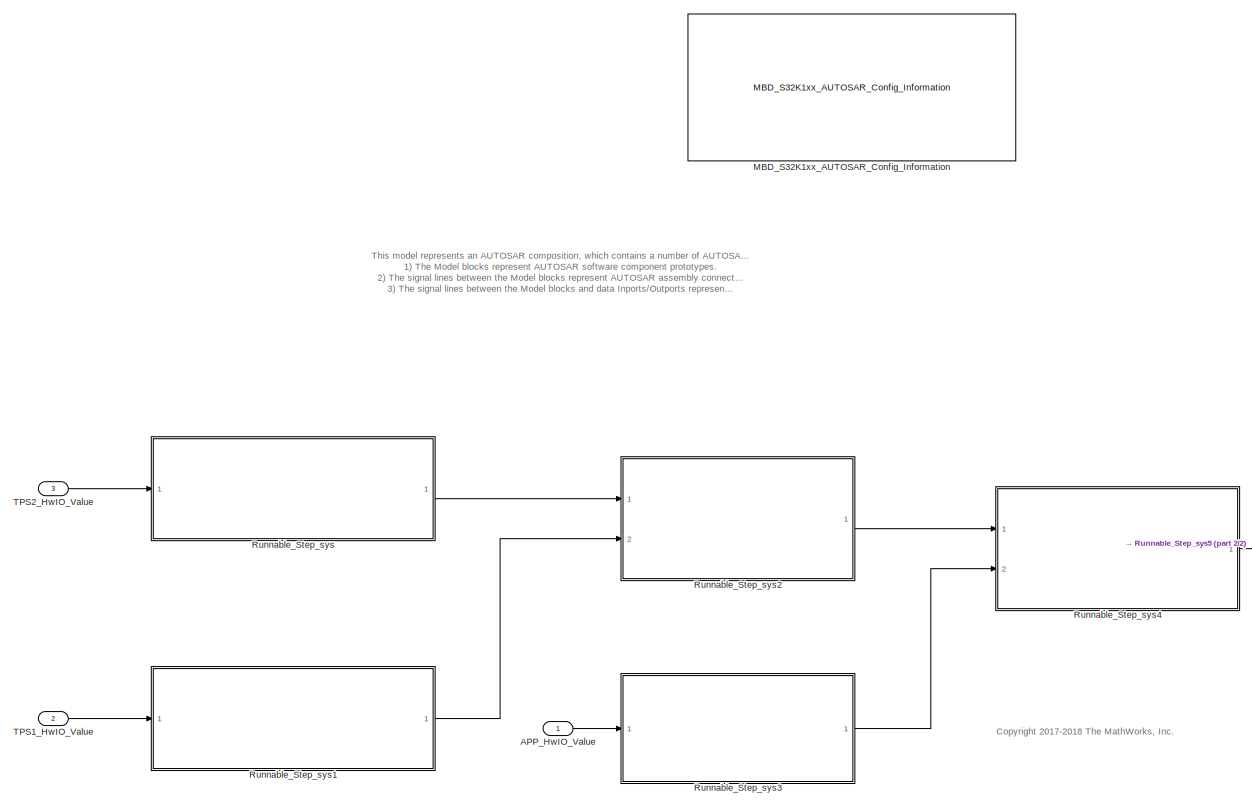
[diagram: root canvas - part 1/2, most of the canvas]
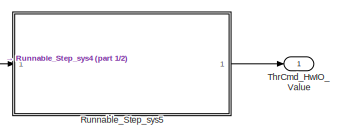
[diagram: root canvas - part 2/2, bottom right region]
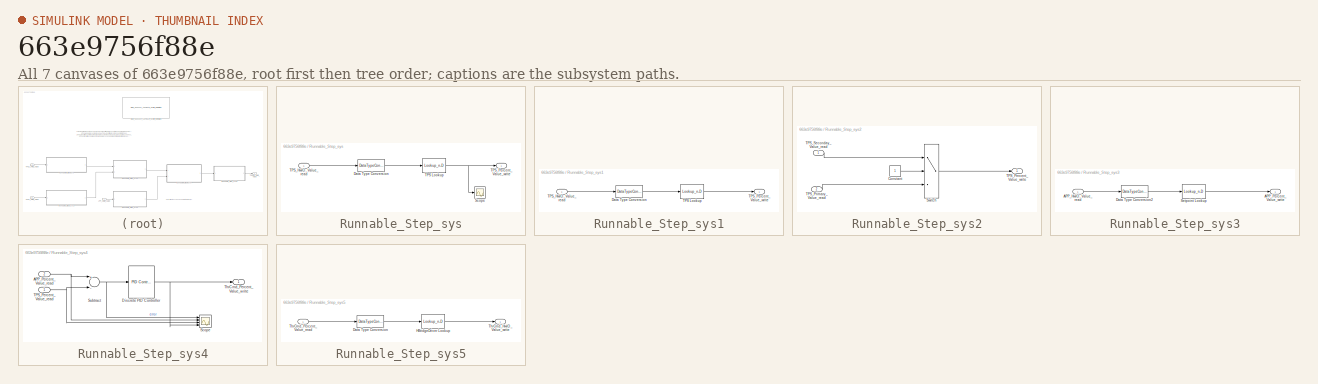
[diagram: thumbnail index - all 7 canvases of the model, root first then tree order]
MODEL slx_663e9756f88e
KIND model
CONFIG AbsTol = auto
CONFIG EnableMultiTasking = on
CONFIG FixedStep = 0.005
CONFIG InitFcn = mbd_s32k_as_consistency_checks(bdroot(gcs));
CONFIG MaxStep = auto
CONFIG MinStep = auto
CONFIG RelTol = 1e-3
CONFIG SampleTimeConstraint = Unconstrained
CONFIG Solver = FixedStepDiscrete
CONFIG SolverName = FixedStepDiscrete
CONFIG StartTime = 0.0
CONFIG StopTime = 1.5
WORKSPACE source: MAT-file member
WORKSPACE MCOS: class17 (value not decoded)
BLOCK [Inport] APP_HwIO_Value
  IconDisplay = Port number
  OutDataTypeStr = uint16
  PortDimensions = 1
  SamplingMode = Sample based
  SignalType = real
BLOCK [Reference] MBD_S32K1xx_AUTOSAR_Config_Information  REF=mbd_s32k_as_ec_toolbox/MBD_S32K1xx_AUTOSAR_Config_Information
  Ports = []
  SourceBlock = mbd_s32k_as_ec_toolbox/MBD_S32K1xx_AUTOSAR_Config_Information
  SourceType = MBDTBX_EC_S32K_AS
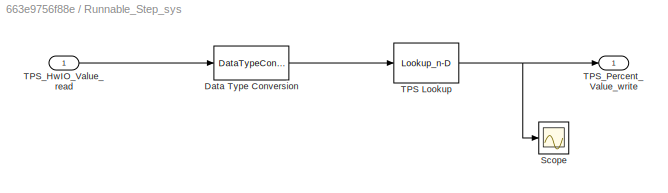
BLOCK [SubSystem] Runnable_Step_sys
  Ports = [1, 1]
  Priority = 3
  RequestExecContextInheritance = off
  SystemSampleTime = 0.005
  TreatAsAtomicUnit = on
BLOCK [DataTypeConversion] Runnable_Step_sys/Data Type Conversion
  OutDataTypeStr = single
  RndMeth = Floor
  SaturateOnIntegerOverflow = off
BLOCK [Scope] Runnable_Step_sys/Scope
  Floating = off
  NumInputPorts = 1
  Ports = [1]
  ScopeSpecificationString = Simulink.scopes.TimeScopeBlockCfg('CurrentConfiguration', extmgr.ConfigurationSet(extmgr.Configuration('Core','General UI',true),extmgr.Configuration('Core','Source UI',true),extmgr.Configuration('Sources','WiredSimulink',true,'DataLoggingVariableName','ScopeData1'),extmgr.Configuration('Visuals','Time Domain',true,'SerializedDisplays',{struct('MinYLimReal','-8.21294','MaxYLimReal','73.91645','YLa...<+1402ch>
BLOCK [Lookup_n-D] Runnable_Step_sys/TPS Lookup
  BreakpointsForDimension1 = TPSPercentBkpt
  BreakpointsForDimension1DataTypeStr = single
  DataSpecification = Lookup table object
  ExtrapMethod = Clip
  IndexSearchMethod = Linear search
  InternalRulePriority = Speed
  LookupTableObject = TPSSecondaryPercent_LkupTbl
  NumberOfTableDimensions = 1
  OutDataTypeStr = single
  Ports = [1, 1]
  RndMeth = Simplest
  Table = TPSPercentTbl
  TableDataTypeStr = single
BLOCK [Inport] Runnable_Step_sys/TPS_HwIO_Value_read
  IconDisplay = Port number
BLOCK [Outport] Runnable_Step_sys/TPS_Percent_Value_write
  IconDisplay = Port number
BLOCK [SubSystem] Runnable_Step_sys1
  Ports = [1, 1]
  Priority = 2
  RequestExecContextInheritance = off
  SystemSampleTime = 0.005
  TreatAsAtomicUnit = on
BLOCK [DataTypeConversion] Runnable_Step_sys1/Data Type Conversion
  OutDataTypeStr = single
  RndMeth = Floor
  SaturateOnIntegerOverflow = off
BLOCK [Lookup_n-D] Runnable_Step_sys1/TPS Lookup
  BreakpointsForDimension1 = TPSPercentBkpt
  BreakpointsForDimension1DataTypeStr = single
  DataSpecification = Lookup table object
  ExtrapMethod = Clip
  IndexSearchMethod = Linear search
  InternalRulePriority = Speed
  LookupTableObject = TPSPrimaryPercent_LkupTbl
  NumberOfTableDimensions = 1
  OutDataTypeStr = single
  Ports = [1, 1]
  RndMeth = Simplest
  Table = TPSPercentTbl
  TableDataTypeStr = single
BLOCK [Inport] Runnable_Step_sys1/TPS_HwIO_Value_read
  IconDisplay = Port number
BLOCK [Outport] Runnable_Step_sys1/TPS_Percent_Value_write
  IconDisplay = Port number
BLOCK [SubSystem] Runnable_Step_sys2
  Ports = [2, 1]
  Priority = 4
  RequestExecContextInheritance = off
  SystemSampleTime = 0.005
  TreatAsAtomicUnit = on
BLOCK [Constant] Runnable_Step_sys2/Constant
  OutDataTypeStr = boolean
BLOCK [Switch] Runnable_Step_sys2/Switch
  Criteria = u2 ~= 0
  InputSameDT = off
  SaturateOnIntegerOverflow = off
BLOCK [Outport] Runnable_Step_sys2/TPS_Percent_Value_write
  IconDisplay = Port number
  PortDimensions = 1
  SignalType = real
BLOCK [Inport] Runnable_Step_sys2/TPS_Primary_Value_read
  IconDisplay = Port number
  Port = 2
BLOCK [Inport] Runnable_Step_sys2/TPS_Seconday_Value_read
  IconDisplay = Port number
BLOCK [SubSystem] Runnable_Step_sys3
  Ports = [1, 1]
  Priority = 5
  RequestExecContextInheritance = off
  SystemSampleTime = 0.005
  TreatAsAtomicUnit = on
BLOCK [Inport] Runnable_Step_sys3/APP_HwIO_Value_read
  IconDisplay = Port number
BLOCK [Outport] Runnable_Step_sys3/APP_Percent_Value_write
  IconDisplay = Port number
BLOCK [DataTypeConversion] Runnable_Step_sys3/Data Type Conversion2
  OutDataTypeStr = single
  RndMeth = Floor
  SaturateOnIntegerOverflow = off
BLOCK [Lookup_n-D] Runnable_Step_sys3/Setpoint Lookup
  BreakpointsForDimension1 = TPSPercentBkpt
  BreakpointsForDimension1DataTypeStr = single
  DataSpecification = Lookup table object
  ExtrapMethod = Clip
  IndexSearchMethod = Linear search
  InternalRulePriority = Speed
  LookupTableObject = SetpointPercent_LkupTbl
  NumberOfTableDimensions = 1
  OutDataTypeStr = single
  Ports = [1, 1]
  RndMeth = Simplest
  Table = TPSPercentTbl
  TableDataTypeStr = single
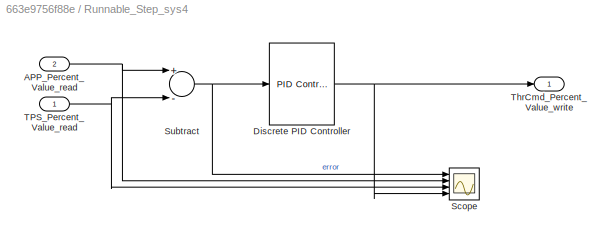
BLOCK [SubSystem] Runnable_Step_sys4
  Ports = [2, 1]
  Priority = 6
  RequestExecContextInheritance = off
  SystemSampleTime = 0.005
  TreatAsAtomicUnit = on
BLOCK [Inport] Runnable_Step_sys4/APP_Percent_Value_read
  IconDisplay = Port number
  Port = 2
BLOCK [Reference] Runnable_Step_sys4/Discrete PID Controller  REF=simulink/Continuous/PID Controller
  Ports = [1, 1]
  SourceBlock = simulink/Continuous/PID Controller
  SourceProductBaseCode = SL
  SourceProductName = Simulink
  SourceType = PID 1dof
BLOCK [Scope] Runnable_Step_sys4/Scope
  Floating = off
  NumInputPorts = 4
  Ports = [4]
  ScopeSpecificationString = Simulink.scopes.TimeScopeBlockCfg('CurrentConfiguration', extmgr.ConfigurationSet(extmgr.Configuration('Core','General UI',true),extmgr.Configuration('Core','Source UI',true),extmgr.Configuration('Sources','WiredSimulink',true),extmgr.Configuration('Visuals','Time Domain',true,'SerializedDisplays',{struct('MinYLimReal','-105.875','MaxYLimReal','122.875','YLabelReal','','MinYLimMag',' 0.00000','Max...<+1544ch>
BLOCK [Sum] Runnable_Step_sys4/Subtract
  InputSameDT = off
  Inputs = +-
  OutDataTypeStr = Inherit: Inherit via internal rule
  Ports = [2, 1]
  SaturateOnIntegerOverflow = off
BLOCK [Inport] Runnable_Step_sys4/TPS_Percent_Value_read
  IconDisplay = Port number
BLOCK [Outport] Runnable_Step_sys4/ThrCmd_Percent_Value_write
  IconDisplay = Port number
BLOCK [SubSystem] Runnable_Step_sys5
  Ports = [1, 1]
  Priority = 6
  RequestExecContextInheritance = off
  SystemSampleTime = 0.005
  TreatAsAtomicUnit = on
BLOCK [DataTypeConversion] Runnable_Step_sys5/Data Type Conversion
  OutDataTypeStr = single
  RndMeth = Floor
  SaturateOnIntegerOverflow = off
BLOCK [Lookup_n-D] Runnable_Step_sys5/HBridgeDriver Lookup
  BreakpointsForDimension1 = TPSPercentBkpt
  BreakpointsForDimension1DataTypeStr = single
  DataSpecification = Lookup table object
  IndexSearchMethod = Linear search
  InternalRulePriority = Speed
  InterpMethod = Nearest
  LookupTableObject = HBridgeCmd_LkupTbl
  NumberOfTableDimensions = 1
  OutDataTypeStr = Inherit: Inherit from 'Table data'
  Ports = [1, 1]
  RndMeth = Simplest
  Table = TPSPercentTbl
  TableDataTypeStr = single
BLOCK [Outport] Runnable_Step_sys5/ThrCmd_HwIO_Value_write
  IconDisplay = Port number
BLOCK [Inport] Runnable_Step_sys5/ThrCmd_Percent_Value_read
  IconDisplay = Port number
BLOCK [Inport] TPS1_HwIO_Value
  IconDisplay = Port number
  OutDataTypeStr = uint16
  Port = 2
  PortDimensions = 1
  SamplingMode = Sample based
  SignalType = real
BLOCK [Inport] TPS2_HwIO_Value
  IconDisplay = Port number
  OutDataTypeStr = uint16
  Port = 3
  PortDimensions = 1
  SamplingMode = Sample based
  SignalType = real
BLOCK [Outport] ThrCmd_HwIO_Value
  IconDisplay = Port number
  OutDataTypeStr = int16
  PortDimensions = 1
  SamplingMode = Sample based
  SignalType = real
ANNOTATION (root): This model represents an AUTOSAR composition, which contains a number of AUTOSAR atomic software components (ASWCs): 1) The Model blocks represent AUTOSAR software component prototypes. 2) The signal lines between the Model blocks represent AUTOSAR assembly connectors. 3) The signal lines between the Model blocks and data Inports/Outports represent AUTOSAR delegation connectors.
ANNOTATION (root): <copyright redacted>
LINE APP_HwIO_Value:1 -> Runnable_Step_sys3:1
LINE Runnable_Step_sys/Data Type Conversion:1 -> Runnable_Step_sys/TPS Lookup:1
NET Runnable_Step_sys/TPS Lookup:1 -> Runnable_Step_sys/Scope:1, Runnable_Step_sys/TPS_Percent_Value_write:1
LINE Runnable_Step_sys/TPS_HwIO_Value_read:1 -> Runnable_Step_sys/Data Type Conversion:1
LINE Runnable_Step_sys1/Data Type Conversion:1 -> Runnable_Step_sys1/TPS Lookup:1
LINE Runnable_Step_sys1/TPS Lookup:1 -> Runnable_Step_sys1/TPS_Percent_Value_write:1
LINE Runnable_Step_sys1/TPS_HwIO_Value_read:1 -> Runnable_Step_sys1/Data Type Conversion:1
LINE Runnable_Step_sys1:1 -> Runnable_Step_sys2:2
LINE Runnable_Step_sys2/Constant:1 -> Runnable_Step_sys2/Switch:2
LINE Runnable_Step_sys2/Switch:1 -> Runnable_Step_sys2/TPS_Percent_Value_write:1
LINE Runnable_Step_sys2/TPS_Primary_Value_read:1 -> Runnable_Step_sys2/Switch:3
LINE Runnable_Step_sys2/TPS_Seconday_Value_read:1 -> Runnable_Step_sys2/Switch:1
LINE Runnable_Step_sys2:1 -> Runnable_Step_sys4:1
LINE Runnable_Step_sys3/APP_HwIO_Value_read:1 -> Runnable_Step_sys3/Data Type Conversion2:1
LINE Runnable_Step_sys3/Data Type Conversion2:1 -> Runnable_Step_sys3/Setpoint Lookup:1
LINE Runnable_Step_sys3/Setpoint Lookup:1 -> Runnable_Step_sys3/APP_Percent_Value_write:1
LINE Runnable_Step_sys3:1 -> Runnable_Step_sys4:2
NET Runnable_Step_sys4/APP_Percent_Value_read:1 -> Runnable_Step_sys4/Scope:2, Runnable_Step_sys4/Subtract:1
NET Runnable_Step_sys4/Discrete PID Controller:1 -> Runnable_Step_sys4/Scope:4, Runnable_Step_sys4/ThrCmd_Percent_Value_write:1
NET Runnable_Step_sys4/Subtract:1 -> Runnable_Step_sys4/Discrete PID Controller:1, Runnable_Step_sys4/Scope:1
NET Runnable_Step_sys4/TPS_Percent_Value_read:1 -> Runnable_Step_sys4/Scope:3, Runnable_Step_sys4/Subtract:2
LINE Runnable_Step_sys4:1 -> Runnable_Step_sys5:1
LINE Runnable_Step_sys5/Data Type Conversion:1 -> Runnable_Step_sys5/HBridgeDriver Lookup:1
LINE Runnable_Step_sys5/HBridgeDriver Lookup:1 -> Runnable_Step_sys5/ThrCmd_HwIO_Value_write:1
LINE Runnable_Step_sys5/ThrCmd_Percent_Value_read:1 -> Runnable_Step_sys5/Data Type Conversion:1
LINE Runnable_Step_sys5:1 -> ThrCmd_HwIO_Value:1
LINE Runnable_Step_sys:1 -> Runnable_Step_sys2:1
LINE TPS1_HwIO_Value:1 -> Runnable_Step_sys1:1
LINE TPS2_HwIO_Value:1 -> Runnable_Step_sys:1
note: NET lines group one-source signal fan-out (src -> all destinations, sorted); 1:1 wires keep LINE
